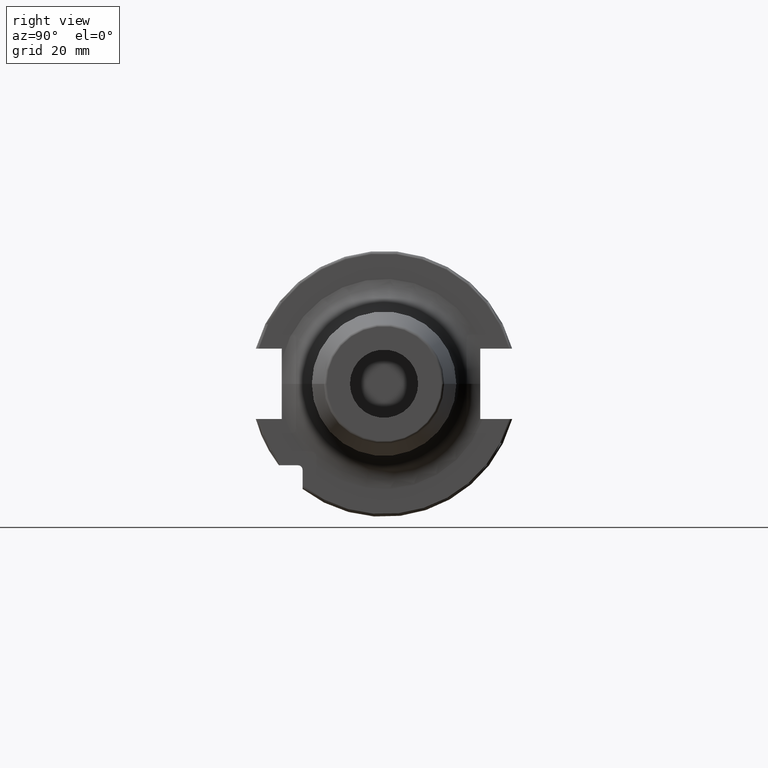
[diagram: clean part render]
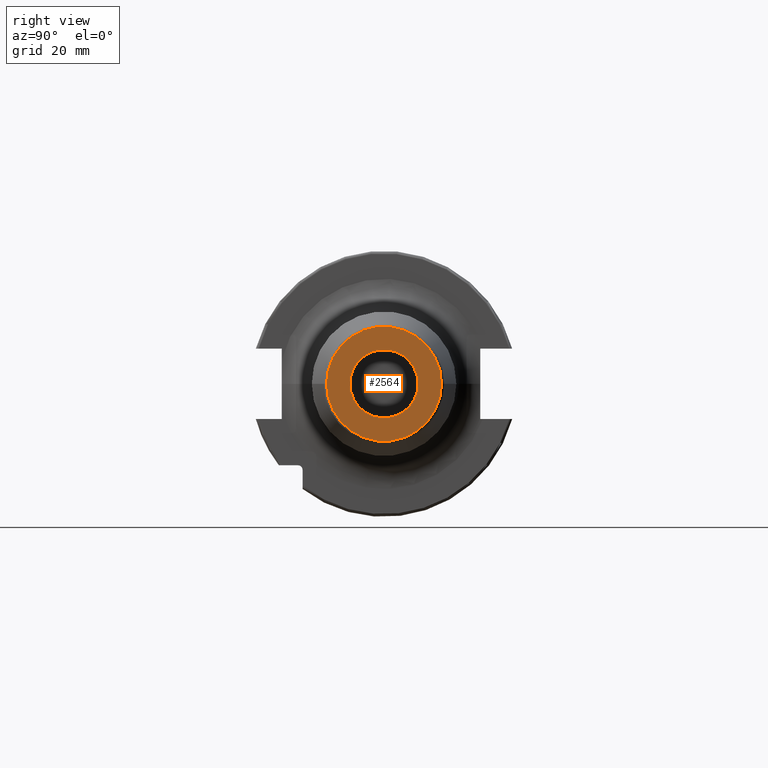
[diagram: same view with one face highlighted and labeled with its STEP entity id]
A machine part, right view. The second image highlights one B-rep face of the part: STEP entity #2564.
In plain terms, the highlighted planar face has unit normal (1, 0, 0).
Its self-contained STEP definition (entity closure, byte-faithful):
#1008=CARTESIAN_POINT('',(1.3E2,0.E0,0.E0));
#1009=DIRECTION('',(-1.E0,0.E0,0.E0));
#1010=DIRECTION('',(0.E0,1.E0,0.E0));
#1011=AXIS2_PLACEMENT_3D('',#1008,#1009,#1010);
#1013=CARTESIAN_POINT('',(1.3E2,0.E0,0.E0));
#1014=DIRECTION('',(-1.E0,0.E0,0.E0));
#1015=DIRECTION('',(0.E0,-1.E0,0.E0));
#1016=AXIS2_PLACEMENT_3D('',#1013,#1014,#1015);
#1018=CARTESIAN_POINT('',(1.3E2,0.E0,0.E0));
#1019=DIRECTION('',(-1.E0,0.E0,0.E0));
#1020=DIRECTION('',(0.E0,-1.E0,0.E0));
#1021=AXIS2_PLACEMENT_3D('',#1018,#1019,#1020);
#1023=CARTESIAN_POINT('',(1.3E2,0.E0,0.E0));
#1024=DIRECTION('',(-1.E0,0.E0,0.E0));
#1025=DIRECTION('',(0.E0,1.E0,0.E0));
#1026=AXIS2_PLACEMENT_3D('',#1023,#1024,#1025);
#1480=CARTESIAN_POINT('',(1.3E2,2.107560950834E1,0.E0));
#1481=CARTESIAN_POINT('',(1.3E2,-2.107560950834E1,0.E0));
#1482=VERTEX_POINT('',#1480);
#1483=VERTEX_POINT('',#1481);
#1500=CARTESIAN_POINT('',(1.3E2,-1.25E1,0.E0));
#1501=CARTESIAN_POINT('',(1.3E2,1.25E1,0.E0));
#1502=VERTEX_POINT('',#1500);
#1503=VERTEX_POINT('',#1501);
#2549=CARTESIAN_POINT('',(1.3E2,0.E0,0.E0));
#2550=DIRECTION('',(1.E0,0.E0,0.E0));
#2551=DIRECTION('',(0.E0,-1.E0,0.E0));
#2552=AXIS2_PLACEMENT_3D('',#2549,#2550,#2551);
#2553=PLANE('',#2552);
#2554=ORIENTED_EDGE('',*,*,#2516,.T.);
#2555=ORIENTED_EDGE('',*,*,#2531,.T.);
#2556=EDGE_LOOP('',(#2554,#2555));
#2557=FACE_OUTER_BOUND('',#2556,.F.);
#2559=ORIENTED_EDGE('',*,*,#2558,.F.);
#2561=ORIENTED_EDGE('',*,*,#2560,.F.);
#2562=EDGE_LOOP('',(#2559,#2561));
#2563=FACE_BOUND('',#2562,.F.);
#2564=ADVANCED_FACE('',(#2557,#2563),#2553,.T.);
#1012=CIRCLE('',#1011,2.107560950834E1);
#1017=CIRCLE('',#1016,2.107560950834E1);
#1022=CIRCLE('',#1021,1.25E1);
#1027=CIRCLE('',#1026,1.25E1);
#2516=EDGE_CURVE('',#1482,#1483,#1012,.T.);
#2531=EDGE_CURVE('',#1483,#1482,#1017,.T.);
#2558=EDGE_CURVE('',#1502,#1503,#1022,.T.);
#2560=EDGE_CURVE('',#1503,#1502,#1027,.T.);